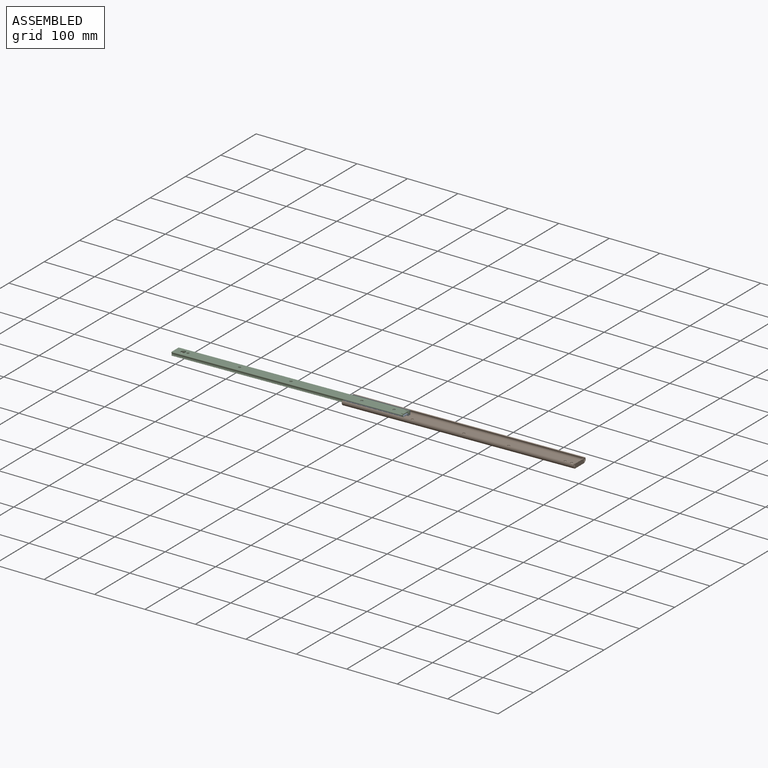
[diagram: assembled view]
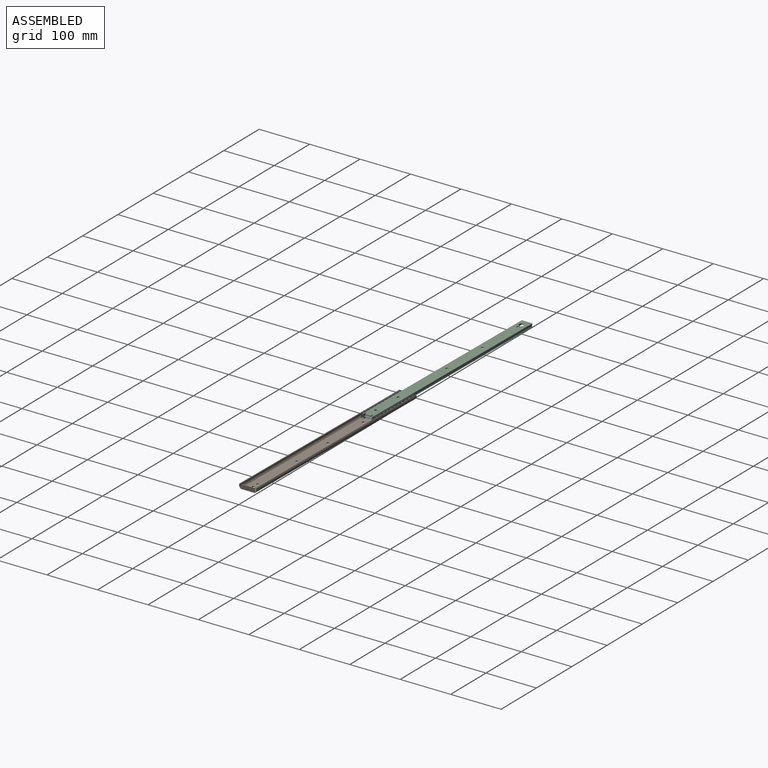
[diagram: assembled view, second angle]
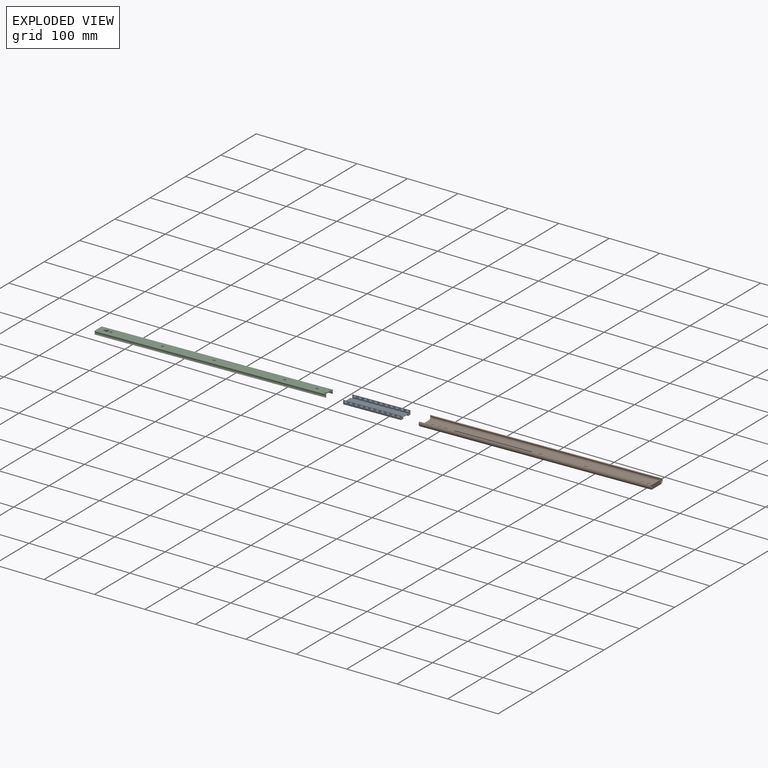
[diagram: exploded view]
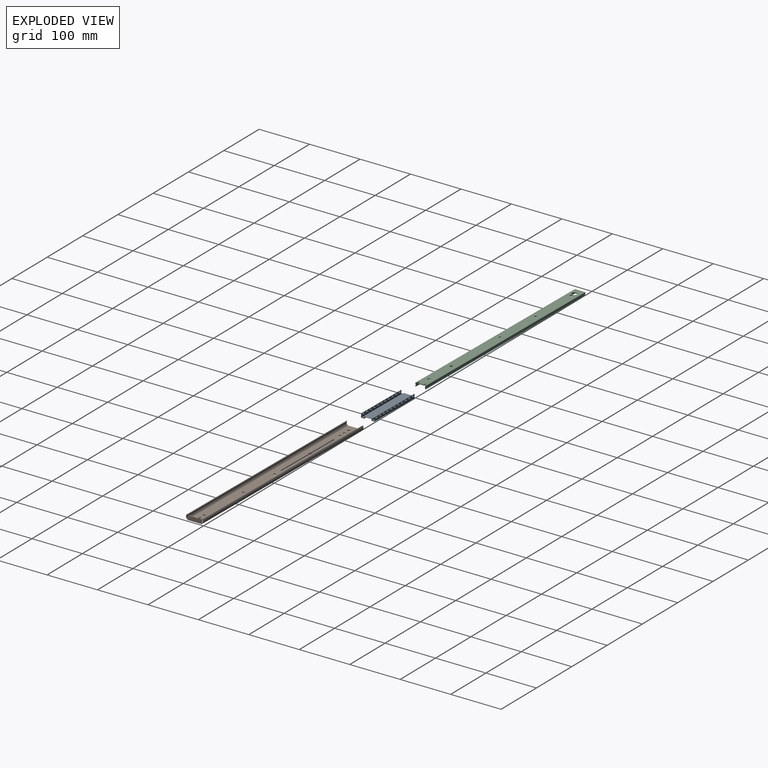
[diagram: exploded view, second angle]
ASSEMBLY  parts=3 mates=2
PART A: 64 faces, bbox 114.3x31.9x8 mm
  f0: sphere r=2.98mm, area 49.5mm2, adj f51
  f1: sphere r=2.98mm, area 49.5mm2, adj f53
  f2: sphere r=2.98mm, area 49.5mm2, adj f51
  f3: sphere r=2.98mm, area 49.5mm2, adj f53
  f4: sphere r=2.98mm, area 49.5mm2, adj f51
  f5: sphere r=2.98mm, area 49.5mm2, adj f53
  f6: sphere r=2.98mm, area 49.5mm2, adj f51
  f7: sphere r=2.98mm, area 49.5mm2, adj f53
  f8: sphere r=2.98mm, area 49.5mm2, adj f51
  f9: sphere r=2.98mm, area 49.5mm2, adj f53
  f10: sphere r=2.98mm, area 49.5mm2, adj f51
  f11: sphere r=2.98mm, area 49.5mm2, adj f53
  f12: sphere r=2.98mm, area 49.5mm2, adj f51
  f13: sphere r=2.98mm, area 49.5mm2, adj f53
  f14: sphere r=2.98mm, area 49.5mm2, adj f51
  f15: sphere r=2.98mm, area 49.5mm2, adj f53
  f16: sphere r=2.98mm, area 49.5mm2, adj f51
  f17: sphere r=2.98mm, area 49.5mm2, adj f53
  f18: sphere r=2.98mm, area 49.5mm2, adj f51
  f19: sphere r=2.98mm, area 49.5mm2, adj f53
  f20: sphere r=2.98mm, area 49.5mm2, adj f51
  f21: sphere r=2.98mm, area 49.5mm2, adj f53
  f22: sphere r=2.98mm, area 49.5mm2, adj f45
  f23: sphere r=2.98mm, area 49.5mm2, adj f61
  f24: sphere r=2.98mm, area 49.5mm2, adj f45
  f25: sphere r=2.98mm, area 49.5mm2, adj f61
  f26: sphere r=2.98mm, area 49.5mm2, adj f45
  f27: sphere r=2.98mm, area 49.5mm2, adj f61
  f28: sphere r=2.98mm, area 49.5mm2, adj f45
  f29: sphere r=2.98mm, area 49.5mm2, adj f61
  f30: sphere r=2.98mm, area 49.5mm2, adj f45
  f31: sphere r=2.98mm, area 49.5mm2, adj f61
  f32: sphere r=2.98mm, area 49.5mm2, adj f45
  f33: sphere r=2.98mm, area 49.5mm2, adj f61
  f34: sphere r=2.98mm, area 49.5mm2, adj f45
  f35: sphere r=2.98mm, area 49.5mm2, adj f61
  f36: sphere r=2.98mm, area 49.5mm2, adj f45
  f37: sphere r=2.98mm, area 49.5mm2, adj f61
  f38: sphere r=2.98mm, area 49.5mm2, adj f45
  f39: sphere r=2.98mm, area 49.5mm2, adj f61
  f40: sphere r=2.98mm, area 49.5mm2, adj f45
  f41: sphere r=2.98mm, area 49.5mm2, adj f61
  f42: sphere r=2.98mm, area 49.5mm2, adj f45
  f43: sphere r=2.98mm, area 49.5mm2, adj f61
  f44: plane 114.3x0.66mm, normal (0,0,1), area 75.5mm2, adj f45,f61,f62,f63
  f45: plane 114.3x7.34mm, normal (0,1,0), area 536.6mm2, adj f22,f24,f26,f28,f30,f32,f34,f36
  f46: plane 114.3x4.7mm, normal (0,0,1), area 537.3mm2, adj f45,f47,f62,f63
  f47: plane 114.3x3.18mm, normal (0,-1,0), area 362.9mm2, adj f46,f48,f62,f63
  f48: plane 114.3x15.86mm, normal (0,0,1), area 1813.1mm2, adj f47,f49,f62,f63
  f49: plane 114.3x3.18mm, normal (0,1,0), area 362.9mm2, adj f48,f50,f62,f63
  f50: plane 114.3x4.7mm, normal (0,0,1), area 537.3mm2, adj f49,f51,f62,f63
  f51: plane 114.3x7.34mm, normal (0,-1,0), area 536.6mm2, adj f0,f2,f4,f6,f8,f10,f12,f14
  f52: plane 114.3x0.66mm, normal (0,0,1), area 75.5mm2, adj f51,f53,f62,f63
  f53: plane 114.3x7.41mm, normal (0,1,0), area 544.4mm2, adj f1,f3,f5,f7,f9,f11,f13,f15
  f54: cylinder r=0.59mm len=114.3mm, axis (1,0,0), area 106.3mm2, adj f53,f55,f62,f63
  f55: plane 114.3x5.43mm, normal (0,0,-1), area 620.6mm2, adj f54,f56,f62,f63
  f56: plane 114.3x3.18mm, normal (0,-1,0), area 362.9mm2, adj f55,f57,f62,f63
  f57: plane 114.3x14.54mm, normal (0,0,-1), area 1662.1mm2, adj f56,f58,f62,f63
  f58: plane 114.3x3.18mm, normal (0,1,0), area 362.9mm2, adj f57,f59,f62,f63
  f59: plane 114.3x5.43mm, normal (0,0,-1), area 620.6mm2, adj f58,f60,f62,f63
  f60: cylinder r=0.59mm len=114.3mm, axis (1,0,0), area 106.3mm2, adj f59,f61,f62,f63
  f61: plane 114.3x7.41mm, normal (0,-1,0), area 544.4mm2, adj f23,f25,f27,f29,f31,f33,f35,f37
  f62: plane 26.58x8mm, normal (-1,0,0), area 31.3mm2, adj f44,f45,f46,f47,f48,f49,f50,f51
  f63: plane 26.58x8mm, normal (1,0,0), area 31.3mm2, adj f44,f45,f46,f47,f48,f49,f50,f51
PART B: 54 faces, bbox 457.2x34.9x9.5 mm
  f0: cylinder r=2.29mm len=4.57mm, axis (0,0,-1), area 10.9mm2, adj f4,f8,f36,f37
  f1: cylinder r=2.29mm len=4.57mm, axis (0,0,-1), area 10.9mm2, adj f4,f8,f33,f34
  f2: cylinder r=2.3mm len=4.6mm, axis (0,0,-1), area 11mm2, adj f4,f8,f30,f31
  f3: cylinder r=2.3mm len=4.6mm, axis (0,0,-1), area 11mm2, adj f4,f8,f27,f28
  f4: plane 455.68x25.4mm, normal (0,0,1), area 11414.5mm2, adj f0,f1,f2,f3,f15,f16,f21,f23
  f5: cylinder r=5.29mm len=457.2mm, axis (-1,0,0), area 3890.5mm2, adj f6,f19,f20,f21
  f6: plane 457.2x1.14mm, normal (0,-0.69,-0.72), area 725.8mm2, adj f5,f7,f20,f21
  f7: cylinder r=2.88mm len=457.2mm, axis (-1,0,0), area 1008.7mm2, adj f6,f8,f20,f21
  f8: plane 457.2x25.4mm, normal (0,0,-1), area 11453.2mm2, adj f0,f1,f2,f3,f7,f9,f20,f21
  f9: cylinder r=2.88mm len=457.2mm, axis (-1,0,0), area 1008.7mm2, adj f8,f10,f20,f21
  f10: plane 457.2x1.14mm, normal (0,0.69,-0.72), area 725.8mm2, adj f9,f11,f20,f21
  f11: cylinder r=5.29mm len=457.2mm, axis (-1,0,0), area 3890.5mm2, adj f10,f12,f20,f21
  f12: plane 457.2x1.1mm, normal (0,-0.72,0.69), area 696.8mm2, adj f11,f13,f20,f21
  f13: cylinder r=3.76mm len=457.2mm, axis (-1,0,0), area 2768.9mm2, adj f12,f14,f20,f21
  f14: plane 457.2x1.14mm, normal (0,-0.69,0.72), area 725.8mm2, adj f13,f15,f20,f21
  f15: cylinder r=1.36mm len=457.2mm, axis (-1,0,0), area 475mm2, adj f4,f14,f20,f21,f22
  f16: cylinder r=1.36mm len=457.2mm, axis (-1,0,0), area 475mm2, adj f4,f17,f20,f21,f24
  f17: plane 457.2x1.14mm, normal (0,0.69,0.72), area 725.8mm2, adj f16,f18,f20,f21
  f18: cylinder r=3.76mm len=457.2mm, axis (-1,0,0), area 2768.9mm2, adj f17,f19,f20,f21
  f19: plane 457.2x1.1mm, normal (0,0.72,0.69), area 696.8mm2, adj f5,f18,f20,f21
  f20: plane 34.93x9.53mm, normal (1,0,0), area 246mm2, adj f5,f6,f7,f8,f9,f10,f11,f12
  f21: plane 34.93x9.53mm, normal (-1,0,0), area 70.7mm2, adj f4,f5,f6,f7,f8,f9,f10,f11
  f22: plane 6.9x1.52mm, normal (0,1,0), area 10.5mm2, adj f15,f20,f23,f25
  f23: plane 25.4x6.9mm, normal (-1,0,0), area 175.3mm2, adj f4,f22,f24,f25
  f24: plane 6.9x1.52mm, normal (0,-1,0), area 10.5mm2, adj f16,f20,f23,f25
  f25: plane 25.4x1.52mm, normal (0,0,1), area 38.7mm2, adj f20,f22,f23,f24
  f26: cylinder r=2.3mm len=4.6mm, axis (0,0,-1), area 11mm2, adj f4,f8,f27,f28
  f27: plane 1.52x0.76mm, normal (-1,0,0), area 1.2mm2, adj f3,f4,f8,f26
  f28: plane 1.52x0.76mm, normal (1,0,0), area 1.2mm2, adj f3,f4,f8,f26
  f29: cylinder r=2.3mm len=4.6mm, axis (0,0,-1), area 11mm2, adj f4,f8,f30,f31
  f30: plane 1.52x0.76mm, normal (-1,0,0), area 1.2mm2, adj f2,f4,f8,f29
  f31: plane 1.52x0.76mm, normal (1,0,0), area 1.2mm2, adj f2,f4,f8,f29
  f32: cylinder r=2.29mm len=4.57mm, axis (0,0,-1), area 10.9mm2, adj f4,f8,f33,f34
  f33: plane 1.52x0.76mm, normal (-1,0,0), area 1.2mm2, adj f1,f4,f8,f32
  f34: plane 1.52x0.76mm, normal (1,0,0), area 1.2mm2, adj f1,f4,f8,f32
  f35: cylinder r=2.29mm len=4.57mm, axis (0,0,-1), area 10.9mm2, adj f4,f8,f36,f37
  f36: plane 1.52x0.76mm, normal (-1,0,0), area 1.2mm2, adj f0,f4,f8,f35
  f37: plane 1.52x0.76mm, normal (1,0,0), area 1.2mm2, adj f0,f4,f8,f35
  f38: cylinder r=2.29mm len=4.57mm, axis (0,0,-1), area 10.9mm2, adj f4,f8,f39,f41
  f39: plane 1.52x0.76mm, normal (0,1,0), area 1.2mm2, adj f4,f8,f38,f40
  f40: cylinder r=2.29mm len=4.57mm, axis (0,0,-1), area 10.9mm2, adj f4,f8,f39,f41
  f41: plane 1.52x0.76mm, normal (0,-1,0), area 1.2mm2, adj f4,f8,f38,f40
  f42: cylinder r=2.29mm len=4.57mm, axis (0,0,-1), area 10.9mm2, adj f4,f8,f43,f45
  f43: plane 1.52x0.76mm, normal (0,1,0), area 1.2mm2, adj f4,f8,f42,f44
  f44: cylinder r=2.29mm len=4.57mm, axis (0,0,-1), area 10.9mm2, adj f4,f8,f43,f45
  f45: plane 1.52x0.76mm, normal (0,-1,0), area 1.2mm2, adj f4,f8,f42,f44
  f46: cylinder r=2.29mm len=4.57mm, axis (0,0,-1), area 10.9mm2, adj f4,f8,f47,f49
  f47: plane 1.52x0.76mm, normal (0,1,0), area 1.2mm2, adj f4,f8,f46,f48
  f48: cylinder r=2.29mm len=4.57mm, axis (0,0,-1), area 10.9mm2, adj f4,f8,f47,f49
  f49: plane 1.52x0.76mm, normal (0,-1,0), area 1.2mm2, adj f4,f8,f46,f48
  f50: cylinder r=2.29mm len=4.57mm, axis (0,0,-1), area 10.9mm2, adj f4,f8,f51,f53
  f51: plane 1.52x0.76mm, normal (0,1,0), area 1.2mm2, adj f4,f8,f50,f52
  f52: cylinder r=2.29mm len=4.57mm, axis (0,0,-1), area 10.9mm2, adj f4,f8,f51,f53
  f53: plane 1.52x0.76mm, normal (0,-1,0), area 1.2mm2, adj f4,f8,f50,f52
PART C: 43 faces, bbox 455.7x21.6x7.3 mm
  f0: cylinder r=2.29mm len=4.57mm, axis (0,0,-1), area 10.9mm2, adj f9,f15,f29,f31
  f1: cylinder r=2.29mm len=4.57mm, axis (0,0,-1), area 10.9mm2, adj f9,f15,f26,f28
  f2: cylinder r=2.29mm len=4.57mm, axis (0,0,-1), area 10.9mm2, adj f9,f15,f23,f25
  f3: cylinder r=4.76mm len=9.53mm, axis (0,0,-1), area 45.6mm2, adj f9,f15
  f4: plane 7.29x2.34mm, normal (1,0,0), area 11.7mm2, adj f9,f10,f11,f12,f13,f14,f15,f36
  f5: cylinder r=4.57mm len=455.68mm, axis (-1,0,0), area 2356.5mm2, adj f6,f16,f17,f18
  f6: plane 455.68x1.25mm, normal (0,-0.57,-0.82), area 694.5mm2, adj f5,f7,f17,f18
  f7: cylinder r=6.1mm len=455.68mm, axis (-1,0,0), area 2733.4mm2, adj f6,f8,f17,f18
  f8: cylinder r=0.03mm len=455.68mm, axis (-1,0,0), area 29.1mm2, adj f7,f9,f17,f18
  f9: plane 455.68x17.72mm, normal (0,0,-1), area 7871.8mm2, adj f0,f1,f2,f3,f4,f8,f10,f17
  f10: cylinder r=0.03mm len=455.68mm, axis (-1,0,0), area 29.1mm2, adj f4,f9,f11,f18
  f11: cylinder r=6.1mm len=455.68mm, axis (-1,0,0), area 2733.4mm2, adj f4,f10,f12,f18
  f12: plane 455.68x1.25mm, normal (0,0.57,-0.82), area 694.5mm2, adj f4,f11,f13,f18
  f13: cylinder r=4.57mm len=455.68mm, axis (-1,0,0), area 2356.5mm2, adj f4,f12,f14,f18
  f14: cylinder r=1.02mm len=455.68mm, axis (-1,0,0), area 969.6mm2, adj f4,f13,f15,f18
  f15: plane 455.68x19.44mm, normal (0,0,1), area 8655.7mm2, adj f0,f1,f2,f3,f4,f14,f16,f17
  f16: cylinder r=1.02mm len=455.68mm, axis (-1,0,0), area 969.6mm2, adj f5,f15,f17,f18
  f17: plane 7.29x2.34mm, normal (1,0,0), area 11.7mm2, adj f5,f6,f7,f8,f9,f15,f16,f42
  f18: plane 21.61x7.29mm, normal (-1,0,0), area 49.3mm2, adj f5,f6,f7,f8,f9,f10,f11,f12
  f19: cylinder r=2.29mm len=4.57mm, axis (0,0,-1), area 10.9mm2, adj f9,f15,f20,f22
  f20: plane 1.52x0.76mm, normal (-1,0,0), area 1.2mm2, adj f9,f15,f19,f21
  f21: cylinder r=2.29mm len=4.57mm, axis (0,0,-1), area 10.9mm2, adj f9,f15,f20,f22
  f22: plane 1.52x0.76mm, normal (1,0,0), area 1.2mm2, adj f9,f15,f19,f21
  f23: plane 1.52x0.76mm, normal (0,1,0), area 1.2mm2, adj f2,f9,f15,f24
  f24: cylinder r=2.29mm len=4.57mm, axis (0,0,-1), area 10.9mm2, adj f9,f15,f23,f25
  f25: plane 1.52x0.76mm, normal (0,-1,0), area 1.2mm2, adj f2,f9,f15,f24
  f26: plane 1.52x0.76mm, normal (0,1,0), area 1.2mm2, adj f1,f9,f15,f27
  f27: cylinder r=2.29mm len=4.57mm, axis (0,0,-1), area 10.9mm2, adj f9,f15,f26,f28
  f28: plane 1.52x0.76mm, normal (0,-1,0), area 1.2mm2, adj f1,f9,f15,f27
  f29: plane 1.52x0.76mm, normal (0,1,0), area 1.2mm2, adj f0,f9,f15,f30
  f30: cylinder r=2.29mm len=4.57mm, axis (0,0,-1), area 10.9mm2, adj f9,f15,f29,f31
  f31: plane 1.52x0.76mm, normal (0,-1,0), area 1.2mm2, adj f0,f9,f15,f30
  f32: cylinder r=2.29mm len=4.57mm, axis (0,0,-1), area 10.9mm2, adj f9,f15,f33,f35
  f33: plane 1.52x0.76mm, normal (-1,0,0), area 1.2mm2, adj f9,f15,f32,f34
  f34: cylinder r=2.29mm len=4.57mm, axis (0,0,-1), area 10.9mm2, adj f9,f15,f33,f35
  f35: plane 1.52x0.76mm, normal (1,0,0), area 1.2mm2, adj f9,f15,f32,f34
  f36: plane 5.69x1.57mm, normal (0.27,-0.96,0), area 9mm2, adj f4,f9,f15,f37
  f37: cylinder r=0.5mm len=1.52mm, axis (0,0,1), area 2.2mm2, adj f9,f15,f36,f38
  f38: plane 4.76x1.52mm, normal (0,1,0), area 7.3mm2, adj f9,f15,f37,f39
  f39: plane 11.89x1.52mm, normal (1,0,0), area 18.1mm2, adj f9,f15,f38,f40
  f40: plane 4.76x1.52mm, normal (0,-1,0), area 7.3mm2, adj f9,f15,f39,f41
  f41: cylinder r=0.5mm len=1.52mm, axis (0,0,1), area 2.2mm2, adj f9,f15,f40,f42
  f42: plane 5.69x1.57mm, normal (0.27,0.96,0), area 9mm2, adj f9,f15,f17,f41
PLACE A rot(axis=(-0.39,-0.85,0.35),1.1deg) t=(38.38,10.97,13.65)mm
PLACE B rot(axis=(-0.39,-0.85,0.35),1.1deg) t=(63.78,11.14,14.07)mm fixed
PLACE C rot(axis=(-0.39,-0.85,0.35),1.1deg) t=(53.39,11.08,14.43)mm
MATE slider A.f62 <-> B.f21  axis (-1,-0.01,-0.02) through (-164.77,9.57,9.31)mm
MATE fastened C.f39 <-> A.f63  axis (1,0.01,0.02) through (-50.55,10.38,15.02)mm
